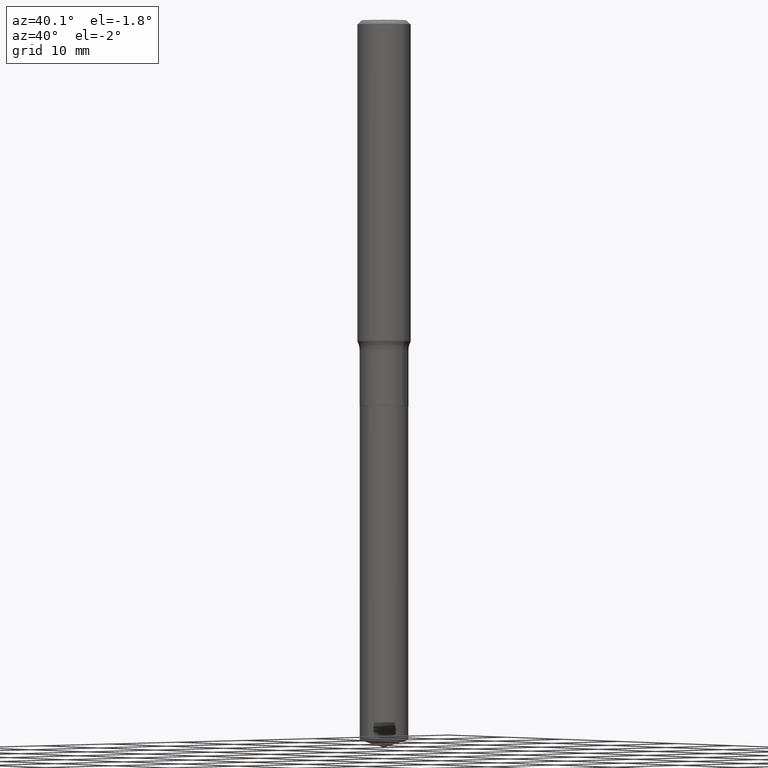
[diagram: clean part render]
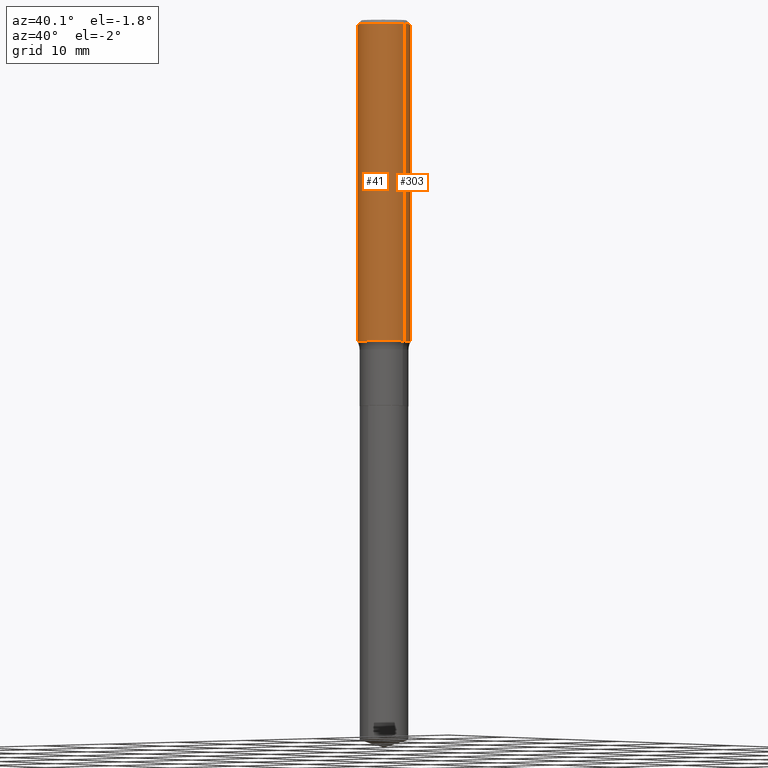
[diagram: same view with one multi-face feature highlighted, each face labeled with its STEP entity id]
A machine part, auxiliary view. The highlighted faces form ONE feature: a constant-radius fillet chain: 2 tangent blend faces with common blend radius 2.9997 mm. The faces share edges in the B-rep.
Their STEP definitions:
[1] entity #41 (Cylinder):
#6 = DIRECTION ( 'NONE',  ( -2.445468806185136877E-29, 3.491481338843145188E-15, 1.000000000000000000 ) ) ;
#14 = CIRCLE ( 'NONE', #100, 0.1180999999999999966 ) ;
#41 = ADVANCED_FACE ( 'NONE', ( #238 ), #130, .T. ) ;
#80 = CARTESIAN_POINT ( 'NONE',  ( 0.1180999999999999966, -8.865394841523547570E-16, -0.01771500000000010913 ) ) ;
#89 = DIRECTION ( 'NONE',  ( -2.445468806185136877E-29, 3.491481338843145188E-15, 1.000000000000000000 ) ) ;
#100 = AXIS2_PLACEMENT_3D ( 'NONE', #199, #345, #422 ) ;
#130 = CYLINDRICAL_SURFACE ( 'NONE', #389, 0.1181000000000000799 ) ;
#132 = EDGE_CURVE ( 'NONE', #220, #366, #14, .T. ) ;
#150 = CARTESIAN_POINT ( 'NONE',  ( -0.1180999999999999966, -1.680429813214882523E-15, -0.01771500000000010913 ) ) ;
#154 = CIRCLE ( 'NONE', #258, 0.1181000000000001632 ) ;
#166 = LINE ( 'NONE', #213, #293 ) ;
#179 = DIRECTION ( 'NONE',  ( -2.445468806185136597E-29, 3.491481338843145583E-15, 1.000000000000000000 ) ) ;
#183 = EDGE_CURVE ( 'NONE', #404, #470, #154, .T. ) ;
#199 = CARTESIAN_POINT ( 'NONE',  ( 4.332147990156996744E-31, -6.185159191760670395E-17, -0.01771500000000010913 ) ) ;
#213 = CARTESIAN_POINT ( 'NONE',  ( 0.1181000000000000799, -8.246878922347486570E-16, 5.758764772215004644E-30 ) ) ;
#220 = VERTEX_POINT ( 'NONE', #150 ) ;
#238 = FACE_OUTER_BOUND ( 'NONE', #442, .T. ) ;
#241 = CARTESIAN_POINT ( 'NONE',  ( 0.000000000000000000, 0.000000000000000000, 0.000000000000000000 ) ) ;
#258 = AXIS2_PLACEMENT_3D ( 'NONE', #281, #179, #352 ) ;
#277 = DIRECTION ( 'NONE',  ( -2.445468806185136597E-29, 3.491481338843145583E-15, 1.000000000000000000 ) ) ;
#280 = ORIENTED_EDGE ( 'NONE', *, *, #362, .F. ) ;
#281 = CARTESIAN_POINT ( 'NONE',  ( 3.486158196102023877E-29, -4.977309976377518003E-15, -1.425558235412674790 ) ) ;
#293 = VECTOR ( 'NONE', #89, 39.37007874015748143 ) ;
#299 = ORIENTED_EDGE ( 'NONE', *, *, #132, .F. ) ;
#307 = LINE ( 'NONE', #448, #341 ) ;
#341 = VECTOR ( 'NONE', #6, 39.37007874015748143 ) ;
#345 = DIRECTION ( 'NONE',  ( -2.445468806185136597E-29, 3.491481338843145583E-15, 1.000000000000000000 ) ) ;
#352 = DIRECTION ( 'NONE',  ( 1.000000000000000000, -6.982962677686263555E-15, 0.000000000000000000 ) ) ;
#359 = ORIENTED_EDGE ( 'NONE', *, *, #478, .T. ) ;
#362 = EDGE_CURVE ( 'NONE', #404, #220, #307, .T. ) ;
#366 = VERTEX_POINT ( 'NONE', #80 ) ;
#389 = AXIS2_PLACEMENT_3D ( 'NONE', #241, #277, #427 ) ;
#404 = VERTEX_POINT ( 'NONE', #456 ) ;
#411 = CARTESIAN_POINT ( 'NONE',  ( 0.1181000000000001493, -5.801997868612266266E-15, -1.425558235412674790 ) ) ;
#422 = DIRECTION ( 'NONE',  ( 1.000000000000000000, -6.982962677686266711E-15, 0.000000000000000000 ) ) ;
#427 = DIRECTION ( 'NONE',  ( 1.000000000000000000, -6.982962677686266711E-15, 4.876176775795936353E-29 ) ) ;
#442 = EDGE_LOOP ( 'NONE', ( #280, #457, #359, #299 ) ) ;
#448 = CARTESIAN_POINT ( 'NONE',  ( -0.1181000000000000799, 8.391509709326788873E-16, -5.809262341591047988E-30 ) ) ;
#456 = CARTESIAN_POINT ( 'NONE',  ( -0.1181000000000001493, -4.138159005444838228E-15, -1.425558235412674790 ) ) ;
#457 = ORIENTED_EDGE ( 'NONE', *, *, #183, .T. ) ;
#470 = VERTEX_POINT ( 'NONE', #411 ) ;
#478 = EDGE_CURVE ( 'NONE', #470, #366, #166, .T. ) ;
[2] entity #303 (Cylinder):
#6 = DIRECTION ( 'NONE',  ( -2.445468806185136877E-29, 3.491481338843145188E-15, 1.000000000000000000 ) ) ;
#25 = EDGE_CURVE ( 'NONE', #366, #220, #274, .T. ) ;
#27 = ORIENTED_EDGE ( 'NONE', *, *, #362, .T. ) ;
#72 = DIRECTION ( 'NONE',  ( 1.000000000000000000, -6.982962677686263555E-15, 0.000000000000000000 ) ) ;
#76 = ORIENTED_EDGE ( 'NONE', *, *, #478, .F. ) ;
#80 = CARTESIAN_POINT ( 'NONE',  ( 0.1180999999999999966, -8.865394841523547570E-16, -0.01771500000000010913 ) ) ;
#89 = DIRECTION ( 'NONE',  ( -2.445468806185136877E-29, 3.491481338843145188E-15, 1.000000000000000000 ) ) ;
#124 = DIRECTION ( 'NONE',  ( 1.000000000000000000, -6.982962677686266711E-15, 4.876176775795936353E-29 ) ) ;
#133 = ORIENTED_EDGE ( 'NONE', *, *, #25, .F. ) ;
#137 = EDGE_CURVE ( 'NONE', #470, #404, #291, .T. ) ;
#147 = CYLINDRICAL_SURFACE ( 'NONE', #209, 0.1181000000000000799 ) ;
#150 = CARTESIAN_POINT ( 'NONE',  ( -0.1180999999999999966, -1.680429813214882523E-15, -0.01771500000000010913 ) ) ;
#166 = LINE ( 'NONE', #213, #293 ) ;
#167 = CARTESIAN_POINT ( 'NONE',  ( 4.332147990156996744E-31, -6.185159191760670395E-17, -0.01771500000000010913 ) ) ;
#182 = EDGE_LOOP ( 'NONE', ( #397, #27, #133, #76 ) ) ;
#195 = DIRECTION ( 'NONE',  ( -2.445468806185136597E-29, 3.491481338843145583E-15, 1.000000000000000000 ) ) ;
#197 = AXIS2_PLACEMENT_3D ( 'NONE', #167, #195, #236 ) ;
#209 = AXIS2_PLACEMENT_3D ( 'NONE', #260, #374, #124 ) ;
#213 = CARTESIAN_POINT ( 'NONE',  ( 0.1181000000000000799, -8.246878922347486570E-16, 5.758764772215004644E-30 ) ) ;
#220 = VERTEX_POINT ( 'NONE', #150 ) ;
#236 = DIRECTION ( 'NONE',  ( 1.000000000000000000, -6.982962677686266711E-15, 0.000000000000000000 ) ) ;
#260 = CARTESIAN_POINT ( 'NONE',  ( 0.000000000000000000, 0.000000000000000000, 0.000000000000000000 ) ) ;
#274 = CIRCLE ( 'NONE', #197, 0.1180999999999999966 ) ;
#291 = CIRCLE ( 'NONE', #412, 0.1181000000000001632 ) ;
#293 = VECTOR ( 'NONE', #89, 39.37007874015748143 ) ;
#303 = ADVANCED_FACE ( 'NONE', ( #325 ), #147, .T. ) ;
#307 = LINE ( 'NONE', #448, #341 ) ;
#325 = FACE_OUTER_BOUND ( 'NONE', #182, .T. ) ;
#341 = VECTOR ( 'NONE', #6, 39.37007874015748143 ) ;
#362 = EDGE_CURVE ( 'NONE', #404, #220, #307, .T. ) ;
#366 = VERTEX_POINT ( 'NONE', #80 ) ;
#374 = DIRECTION ( 'NONE',  ( -2.445468806185136597E-29, 3.491481338843145583E-15, 1.000000000000000000 ) ) ;
#397 = ORIENTED_EDGE ( 'NONE', *, *, #137, .T. ) ;
#404 = VERTEX_POINT ( 'NONE', #456 ) ;
#411 = CARTESIAN_POINT ( 'NONE',  ( 0.1181000000000001493, -5.801997868612266266E-15, -1.425558235412674790 ) ) ;
#412 = AXIS2_PLACEMENT_3D ( 'NONE', #441, #484, #72 ) ;
#441 = CARTESIAN_POINT ( 'NONE',  ( 3.486158196102023877E-29, -4.977309976377518003E-15, -1.425558235412674790 ) ) ;
#448 = CARTESIAN_POINT ( 'NONE',  ( -0.1181000000000000799, 8.391509709326788873E-16, -5.809262341591047988E-30 ) ) ;
#456 = CARTESIAN_POINT ( 'NONE',  ( -0.1181000000000001493, -4.138159005444838228E-15, -1.425558235412674790 ) ) ;
#470 = VERTEX_POINT ( 'NONE', #411 ) ;
#478 = EDGE_CURVE ( 'NONE', #470, #366, #166, .T. ) ;
#484 = DIRECTION ( 'NONE',  ( -2.445468806185136597E-29, 3.491481338843145583E-15, 1.000000000000000000 ) ) ;